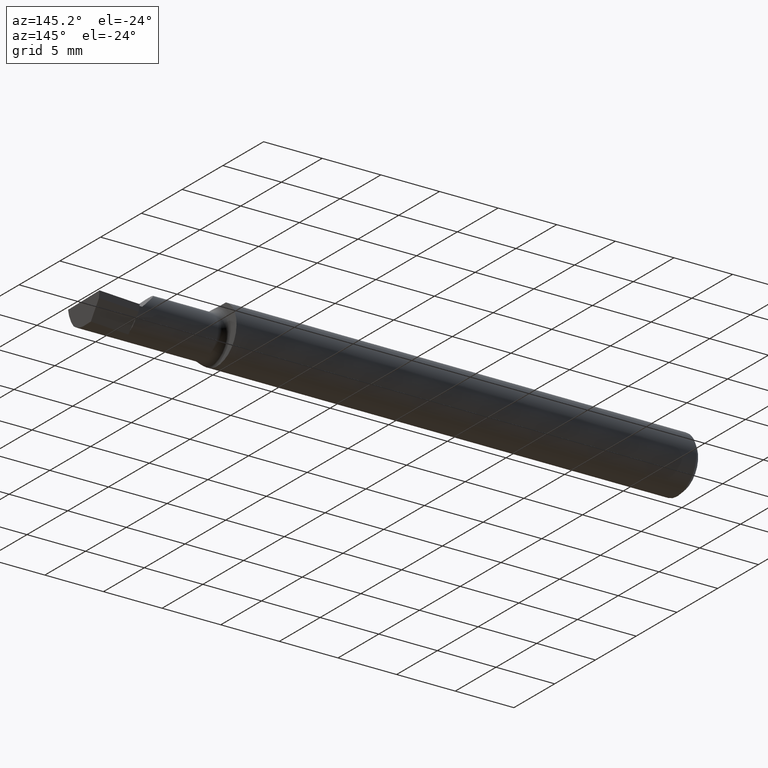
[diagram: clean part render]
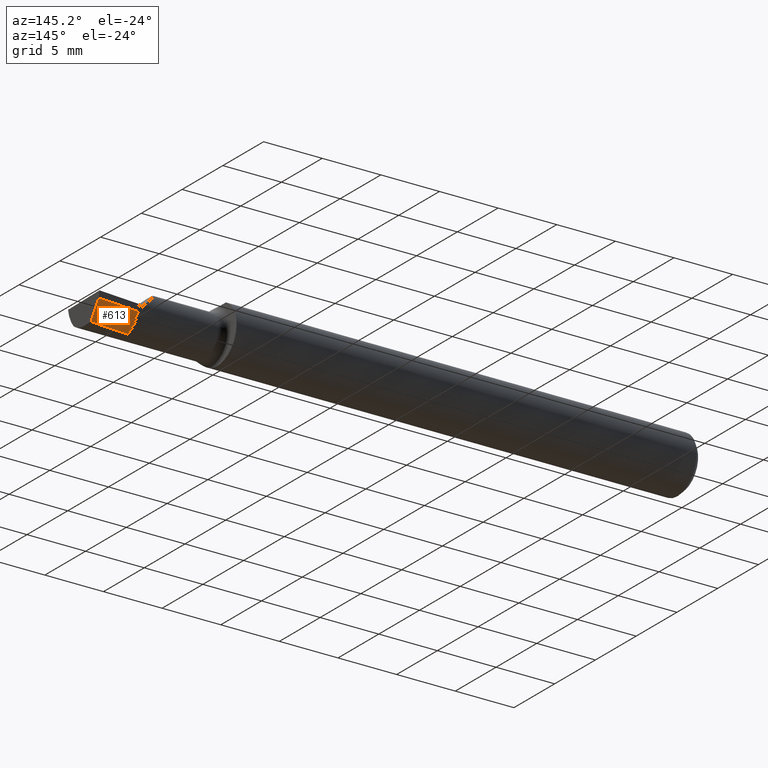
[diagram: same view with one face highlighted and labeled with its STEP entity id]
A machine part, auxiliary view. The second image highlights one B-rep face of the part: STEP entity #613.
In plain terms, the highlighted planar face has unit normal (0.0689, -0.716, 0.6947).
Its self-contained STEP definition (entity closure, byte-faithful):
#3 = EDGE_CURVE ( 'NONE', #610, #514, #179, .T. ) ;
#25 = VERTEX_POINT ( 'NONE', #280 ) ;
#31 = EDGE_LOOP ( 'NONE', ( #617, #308, #176, #117, #277, #262 ) ) ;
#38 = VECTOR ( 'NONE', #242, 39.37007874015748143 ) ;
#64 = VECTOR ( 'NONE', #431, 39.37007874015748143 ) ;
#69 = EDGE_CURVE ( 'NONE', #456, #25, #239, .T. ) ;
#74 = CARTESIAN_POINT ( 'NONE',  ( 1.854999999999999982, 0.04429519371539571149, -0.02000000000000000042 ) ) ;
#91 = CARTESIAN_POINT ( 'NONE',  ( 1.989797099917948842, 0.007796764149783521822, -0.07100000000000021572 ) ) ;
#97 = LINE ( 'NONE', #294, #476 ) ;
#109 = LINE ( 'NONE', #399, #556 ) ;
#117 = ORIENTED_EDGE ( 'NONE', *, *, #69, .F. ) ;
#130 = DIRECTION ( 'NONE',  ( 0.9953961983671800740, 0.09584575252021028391, -2.116984158397002112E-18 ) ) ;
#136 = VECTOR ( 'NONE', #526, 39.37007874015748143 ) ;
#176 = ORIENTED_EDGE ( 'NONE', *, *, #188, .F. ) ;
#179 = LINE ( 'NONE', #566, #300 ) ;
#188 = EDGE_CURVE ( 'NONE', #25, #610, #97, .T. ) ;
#192 = CARTESIAN_POINT ( 'NONE',  ( 1.854999999999999982, 0.03291555154404722516, -0.03172971339384390160 ) ) ;
#200 = EDGE_CURVE ( 'NONE', #371, #456, #109, .T. ) ;
#239 = LINE ( 'NONE', #282, #38 ) ;
#242 = DIRECTION ( 'NONE',  ( 2.972230601656782806E-18, -0.6963153109074924352, -0.7177360153954949196 ) ) ;
#249 = AXIS2_PLACEMENT_3D ( 'NONE', #426, #569, #296 ) ;
#262 = ORIENTED_EDGE ( 'NONE', *, *, #435, .T. ) ;
#277 = ORIENTED_EDGE ( 'NONE', *, *, #200, .F. ) ;
#278 = LINE ( 'NONE', #376, #136 ) ;
#280 = CARTESIAN_POINT ( 'NONE',  ( 1.854999999999999982, 0.003039038829300824175, -0.06252531540616809713 ) ) ;
#281 = CARTESIAN_POINT ( 'NONE',  ( 1.997375993425186458, 0.05800444260848394012, -0.01999999999999999001 ) ) ;
#282 = CARTESIAN_POINT ( 'NONE',  ( 1.854999999999999982, 0.02466814268713793043, -0.04023083677511909290 ) ) ;
#292 = FACE_OUTER_BOUND ( 'NONE', #31, .T. ) ;
#294 = CARTESIAN_POINT ( 'NONE',  ( 1.854999999999999982, 0.02466814268713793043, -0.04023083677511909290 ) ) ;
#296 = DIRECTION ( 'NONE',  ( 0.000000000000000000, -0.6963153109074924352, -0.7177360153954949196 ) ) ;
#300 = VECTOR ( 'NONE', #130, 39.37007874015748854 ) ;
#308 = ORIENTED_EDGE ( 'NONE', *, *, #3, .F. ) ;
#371 = VERTEX_POINT ( 'NONE', #74 ) ;
#376 = CARTESIAN_POINT ( 'NONE',  ( 1.434596552969581662, 0.003814945941878222693, -0.02000000000000000042 ) ) ;
#381 = CARTESIAN_POINT ( 'NONE',  ( 1.987153287650113009, -0.009717623157798458214, -0.08879077981909574979 ) ) ;
#390 = CARTESIAN_POINT ( 'NONE',  ( 1.854999999999999982, -0.005182720301102405197, -0.07100000000000021572 ) ) ;
#399 = CARTESIAN_POINT ( 'NONE',  ( 1.854999999999999982, 0.02466814268713793043, -0.04023083677511909290 ) ) ;
#426 = CARTESIAN_POINT ( 'NONE',  ( 1.434596552969581662, 0.003814945941878222693, -0.02000000000000000042 ) ) ;
#431 = DIRECTION ( 'NONE',  ( 0.1053106618241779063, 0.6976485211320171409, 0.7086580314005218595 ) ) ;
#435 = EDGE_CURVE ( 'NONE', #371, #563, #278, .T. ) ;
#454 = DIRECTION ( 'NONE',  ( 2.972230601656782806E-18, -0.6963153109074924352, -0.7177360153954949196 ) ) ;
#456 = VERTEX_POINT ( 'NONE', #192 ) ;
#476 = VECTOR ( 'NONE', #491, 39.37007874015748143 ) ;
#485 = LINE ( 'NONE', #381, #64 ) ;
#490 = PLANE ( 'NONE',  #249 ) ;
#491 = DIRECTION ( 'NONE',  ( 2.972230601656782806E-18, -0.6963153109074924352, -0.7177360153954949196 ) ) ;
#514 = VERTEX_POINT ( 'NONE', #91 ) ;
#526 = DIRECTION ( 'NONE',  ( 0.9953961983671800740, 0.09584575252021028391, -0.000000000000000000 ) ) ;
#556 = VECTOR ( 'NONE', #454, 39.37007874015748143 ) ;
#563 = VERTEX_POINT ( 'NONE', #281 ) ;
#566 = CARTESIAN_POINT ( 'NONE',  ( 1.996243047997680486, 0.008417438355111557524, -0.07100000000000021572 ) ) ;
#569 = DIRECTION ( 'NONE',  ( 0.06894566448119621160, -0.7160281025913035613, 0.6946583704589933683 ) ) ;
#591 = EDGE_CURVE ( 'NONE', #514, #563, #485, .T. ) ;
#610 = VERTEX_POINT ( 'NONE', #390 ) ;
#613 = ADVANCED_FACE ( 'NONE', ( #292 ), #490, .F. ) ;
#617 = ORIENTED_EDGE ( 'NONE', *, *, #591, .F. ) ;